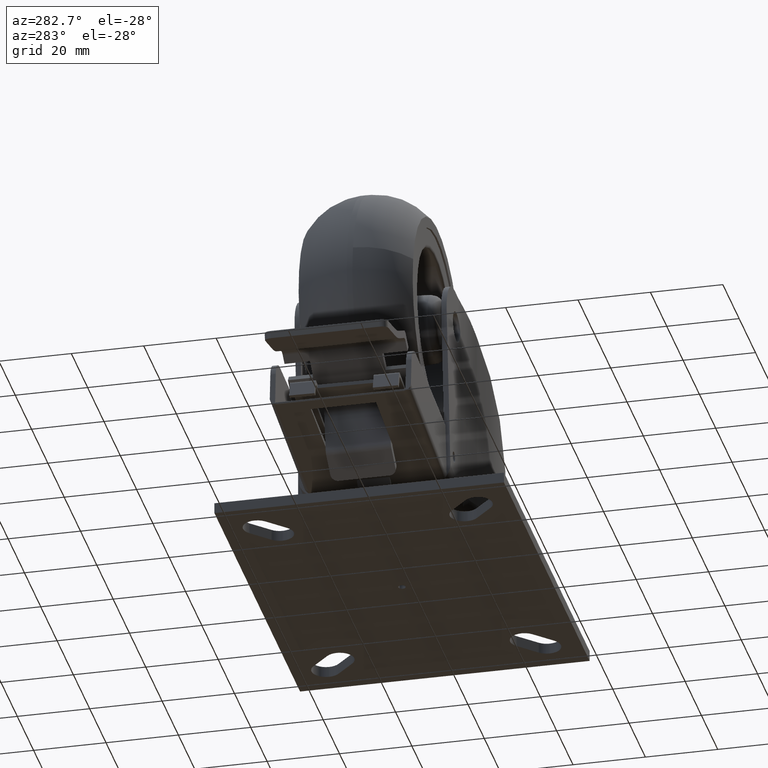
[diagram: clean part render]
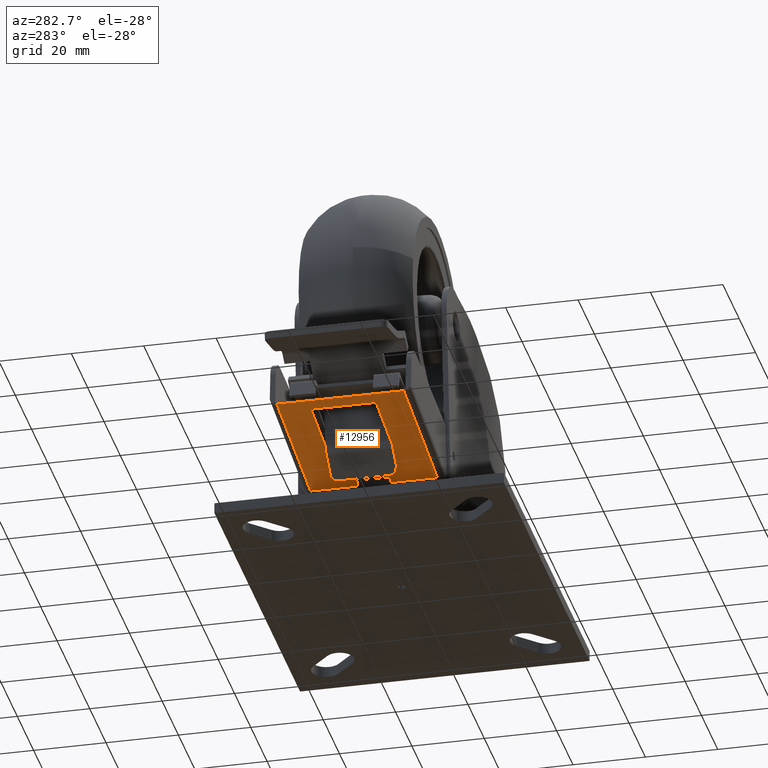
[diagram: same view with one face highlighted and labeled with its STEP entity id]
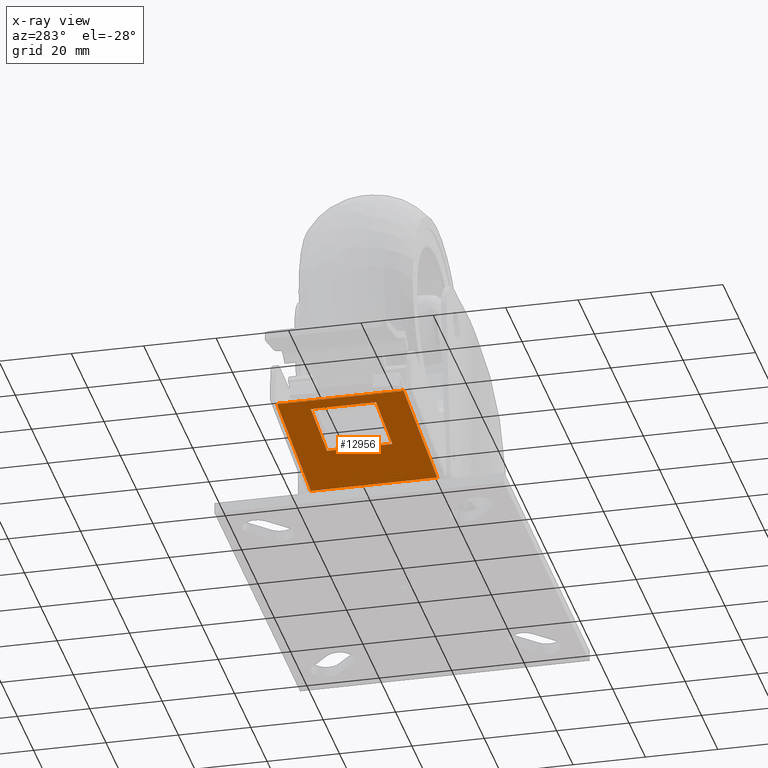
[diagram: x-ray of the same camera — body ghosted, the highlighted face saturated]
A machine part, auxiliary view. The second image highlights one B-rep face of the part: STEP entity #12956.
The next image is the same camera in x-ray: the body ghosted, the highlighted face saturated — about 0% of this face is hidden behind the body in this view.
In plain terms, the highlighted planar face has unit normal (-0.1207, 0, -0.9927).
Its self-contained STEP definition (entity closure, byte-faithful):
#189 = CARTESIAN_POINT ( 'NONE',  ( 1.999999999820412300, 0.03864091700728310800, 16.29933177721579400 ) ) ;
#339 = DIRECTION ( 'NONE',  ( 1.000000000000000000, 0.0000000000000000000, 0.0000000000000000000 ) ) ;
#340 = VECTOR ( 'NONE', #339, 1000.000000000000000 ) ;
#341 = CARTESIAN_POINT ( 'NONE',  ( 19.50000000000000000, 0.03864091700000001100, 16.29933177699999900 ) ) ;
#342 = LINE ( 'NONE', #341, #340 ) ;
#343 = CARTESIAN_POINT ( 'NONE',  ( 36.99999999999999300, 0.03864091700972211600, 16.29933177721571300 ) ) ;
#437 = CARTESIAN_POINT ( 'NONE',  ( 28.49999999625000400, 1.311099893496921800, 54.00227612197472400 ) ) ;
#439 = DIRECTION ( 'NONE',  ( 1.000000000000000000, 0.0000000000000000000, 0.0000000000000000000 ) ) ;
#440 = VECTOR ( 'NONE', #439, 1000.000000000000000 ) ;
#441 = CARTESIAN_POINT ( 'NONE',  ( 19.50000000000000000, 1.311099893361790100, 54.00227611797076600 ) ) ;
#442 = LINE ( 'NONE', #441, #440 ) ;
#453 = DIRECTION ( 'NONE',  ( -1.000000000000000000, -0.0000000000000000000, -0.0000000000000000000 ) ) ;
#454 = VECTOR ( 'NONE', #453, 1000.000000000000000 ) ;
#455 = CARTESIAN_POINT ( 'NONE',  ( 19.50000000000000000, 0.6364921515781231100, 34.01365674952528900 ) ) ;
#456 = LINE ( 'NONE', #455, #454 ) ;
#468 = CARTESIAN_POINT ( 'NONE',  ( 10.50000000125000100, 1.311099893055966300, 54.00227611632878700 ) ) ;
#469 = CARTESIAN_POINT ( 'NONE',  ( 10.50000000125000100, 0.6364921522066476800, 34.01365675095829700 ) ) ;
#470 = DIRECTION ( 'NONE',  ( -0.0000000000000000000, 0.03373038709500740500, 0.9994309685948403700 ) ) ;
#471 = VECTOR ( 'NONE', #470, 1000.000000000000100 ) ;
#472 = CARTESIAN_POINT ( 'NONE',  ( 10.50000000500000000, 0.7423311794999997200, 37.14966588850000300 ) ) ;
#473 = LINE ( 'NONE', #472, #471 ) ;
#560 = CARTESIAN_POINT ( 'NONE',  ( 28.49999999875000600, 0.6364921523068515200, 34.01365675411121000 ) ) ;
#561 = DIRECTION ( 'NONE',  ( 0.0000000000000000000, -0.03373038709500741200, -0.9994309685948403700 ) ) ;
#562 = VECTOR ( 'NONE', #561, 1000.000000000000100 ) ;
#563 = CARTESIAN_POINT ( 'NONE',  ( 28.49999999500000300, 0.7423311794999998300, 37.14966588850000300 ) ) ;
#564 = LINE ( 'NONE', #563, #562 ) ;
#622 = DIRECTION ( 'NONE',  ( -0.0000000000000000000, -0.03373038708625290800, -0.9994309685951359200 ) ) ;
#623 = VECTOR ( 'NONE', #622, 1000.000000000000000 ) ;
#624 = CARTESIAN_POINT ( 'NONE',  ( 1.999999999640825500, 0.7476985379999999700, 37.30870066250000100 ) ) ;
#625 = LINE ( 'NONE', #624, #623 ) ;
#626 = CARTESIAN_POINT ( 'NONE',  ( 1.999999999820413200, 1.446021441733555500, 58.00000000000309100 ) ) ;
#627 = DIRECTION ( 'NONE',  ( -1.000000000000000000, 0.0000000000000000000, 0.0000000000000000000 ) ) ;
#628 = VECTOR ( 'NONE', #627, 1000.000000000000000 ) ;
#629 = CARTESIAN_POINT ( 'NONE',  ( 19.50000000000000000, 1.446021441999999700, 58.00000000000000000 ) ) ;
#630 = LINE ( 'NONE', #629, #628 ) ;
#642 = CARTESIAN_POINT ( 'NONE',  ( 37.00000000000000000, 1.446021441725834800, 58.00000000000309100 ) ) ;
#643 = DIRECTION ( 'NONE',  ( 0.0000000000000000000, 0.03373038708625290800, 0.9994309685951359200 ) ) ;
#644 = VECTOR ( 'NONE', #643, 1000.000000000000000 ) ;
#645 = CARTESIAN_POINT ( 'NONE',  ( 37.00000000000000000, 0.7476985379999999700, 37.30870066250000100 ) ) ;
#646 = LINE ( 'NONE', #645, #644 ) ;
#647 = DIRECTION ( 'NONE',  ( 0.0000000000000000000, -0.03373038709500741200, -0.9994309685948404900 ) ) ;
#648 = DIRECTION ( 'NONE',  ( 0.0000000000000000000, -0.9994309685948404900, 0.03373038709500741200 ) ) ;
#649 = CARTESIAN_POINT ( 'NONE',  ( 2.000000000000000000, 1.446021441999999700, 58.00000000000000000 ) ) ;
#650 = AXIS2_PLACEMENT_3D ( 'NONE', #649, #648, #647 ) ;
#651 = PLANE ( 'NONE',  #650 ) ;
#652 = FACE_OUTER_BOUND ( 'NONE', #12962, .T. ) ;
#653 = FACE_BOUND ( 'NONE', #12957, .T. ) ;
#12751 = VERTEX_POINT ( 'NONE', #189 ) ;
#12810 = VERTEX_POINT ( 'NONE', #343 ) ;
#12812 = EDGE_CURVE ( 'NONE', #12751, #12810, #342, .T. ) ;
#12857 = EDGE_CURVE ( 'NONE', #12927, #12879, #456, .T. ) ;
#12863 = EDGE_CURVE ( 'NONE', #12880, #12864, #442, .T. ) ;
#12864 = VERTEX_POINT ( 'NONE', #437 ) ;
#12878 = EDGE_CURVE ( 'NONE', #12879, #12880, #473, .T. ) ;
#12879 = VERTEX_POINT ( 'NONE', #469 ) ;
#12880 = VERTEX_POINT ( 'NONE', #468 ) ;
#12926 = EDGE_CURVE ( 'NONE', #12864, #12927, #564, .T. ) ;
#12927 = VERTEX_POINT ( 'NONE', #560 ) ;
#12936 = EDGE_CURVE ( 'NONE', #12966, #12937, #630, .T. ) ;
#12937 = VERTEX_POINT ( 'NONE', #626 ) ;
#12938 = ORIENTED_EDGE ( 'NONE', *, *, #12939, .T. ) ;
#12939 = EDGE_CURVE ( 'NONE', #12937, #12751, #625, .T. ) ;
#12956 = ADVANCED_FACE ( 'NONE', ( #653, #652 ), #651, .T. ) ;
#12957 = EDGE_LOOP ( 'NONE', ( #12958, #12959, #12960, #12961 ) ) ;
#12958 = ORIENTED_EDGE ( 'NONE', *, *, #12878, .T. ) ;
#12959 = ORIENTED_EDGE ( 'NONE', *, *, #12863, .T. ) ;
#12960 = ORIENTED_EDGE ( 'NONE', *, *, #12926, .T. ) ;
#12961 = ORIENTED_EDGE ( 'NONE', *, *, #12857, .T. ) ;
#12962 = EDGE_LOOP ( 'NONE', ( #12963, #12964, #13019, #12938 ) ) ;
#12963 = ORIENTED_EDGE ( 'NONE', *, *, #12812, .T. ) ;
#12964 = ORIENTED_EDGE ( 'NONE', *, *, #12965, .T. ) ;
#12965 = EDGE_CURVE ( 'NONE', #12810, #12966, #646, .T. ) ;
#12966 = VERTEX_POINT ( 'NONE', #642 ) ;
#13019 = ORIENTED_EDGE ( 'NONE', *, *, #12936, .T. ) ;